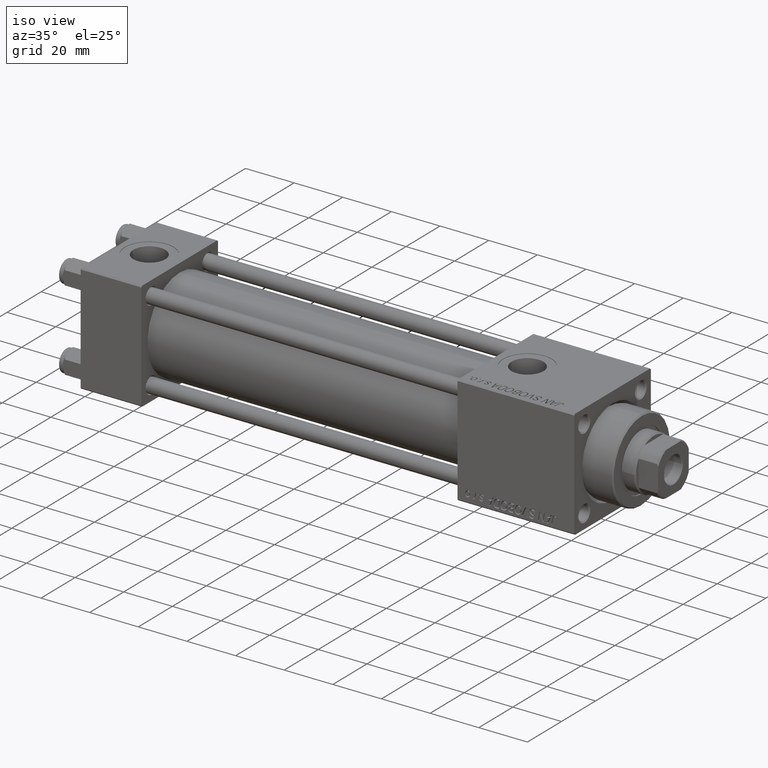
[diagram: clean part render]
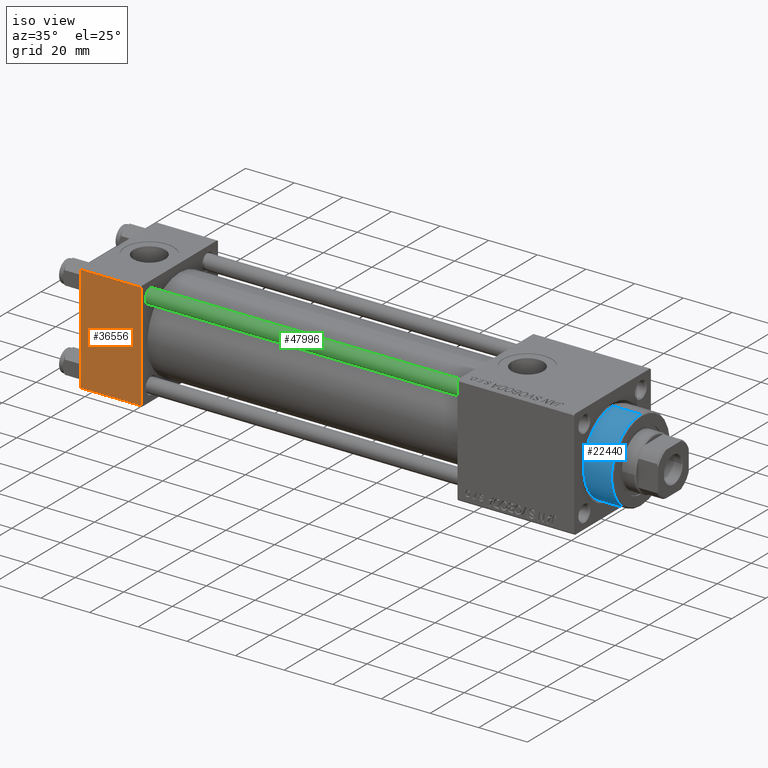
[diagram: same view with three faces highlighted in distinct colors, each labeled with its STEP entity id]
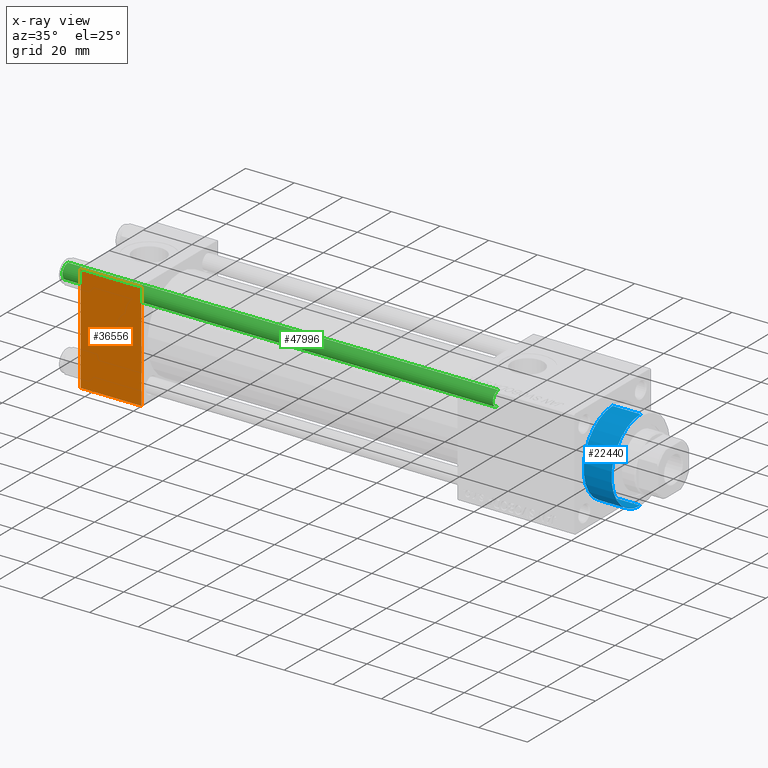
[diagram: x-ray of the same camera — body ghosted, the three highlighted faces saturated]
A machine part, iso view with three faces highlighted in distinct colors.
The next image is the same camera in x-ray (body ghosted, the three faces saturated) — at least one of them is partly hidden behind the body in this view.
Their STEP definitions:

[orange] entity #36556 — the highlighted planar face has unit normal (0, 1, 0).
#212 = EDGE_CURVE ( 'NONE', #17568, #12446, #4632, .T. ) ;
#1429 = DIRECTION ( 'NONE',  ( -1.000000000000000000, 0.000000000000000000, 0.000000000000000000 ) ) ;
#3080 = DIRECTION ( 'NONE',  ( -0.000000000000000000, 1.000000000000000000, 0.000000000000000000 ) ) ;
#4632 = LINE ( 'NONE', #48235, #14926 ) ;
#6069 = CARTESIAN_POINT ( 'NONE',  ( 25.00000000000000000, -22.50000000000000000, 22.00000000000000000 ) ) ;
#10345 = CARTESIAN_POINT ( 'NONE',  ( 25.00000000000000000, -22.50000000000000000, 22.50000000000000000 ) ) ;
#11223 = CARTESIAN_POINT ( 'NONE',  ( 25.00000000000000000, -22.50000000000000000, -21.99999999999997158 ) ) ;
#12446 = VERTEX_POINT ( 'NONE', #22373 ) ;
#14844 = EDGE_CURVE ( 'NONE', #22030, #17568, #18257, .T. ) ;
#14926 = VECTOR ( 'NONE', #24600, 1000.000000000000000 ) ;
#16319 = ORIENTED_EDGE ( 'NONE', *, *, #212, .T. ) ;
#16860 = EDGE_CURVE ( 'NONE', #22030, #20345, #45090, .T. ) ;
#16967 = VECTOR ( 'NONE', #1429, 1000.000000000000000 ) ;
#17066 = CARTESIAN_POINT ( 'NONE',  ( 25.00000000000000000, -22.50000000000000000, 22.50000000000000000 ) ) ;
#17568 = VERTEX_POINT ( 'NONE', #22093 ) ;
#17636 = ORIENTED_EDGE ( 'NONE', *, *, #14844, .T. ) ;
#18257 = LINE ( 'NONE', #6069, #16967 ) ;
#18638 = VECTOR ( 'NONE', #41439, 1000.000000000000000 ) ;
#20345 = VERTEX_POINT ( 'NONE', #11223 ) ;
#22030 = VERTEX_POINT ( 'NONE', #48374 ) ;
#22093 = CARTESIAN_POINT ( 'NONE',  ( 0.000000000000000000, -22.50000000000000000, 22.00000000000000000 ) ) ;
#22256 = EDGE_CURVE ( 'NONE', #12446, #20345, #26773, .T. ) ;
#22373 = CARTESIAN_POINT ( 'NONE',  ( 0.000000000000000000, -22.50000000000000000, -21.99999999999997158 ) ) ;
#23330 = ORIENTED_EDGE ( 'NONE', *, *, #22256, .T. ) ;
#24600 = DIRECTION ( 'NONE',  ( 0.000000000000000000, 0.000000000000000000, -1.000000000000000000 ) ) ;
#25326 = VECTOR ( 'NONE', #42607, 1000.000000000000000 ) ;
#25771 = EDGE_LOOP ( 'NONE', ( #16319, #23330, #51260, #17636 ) ) ;
#26773 = LINE ( 'NONE', #50656, #25326 ) ;
#29588 = PLANE ( 'NONE',  #31557 ) ;
#31557 = AXIS2_PLACEMENT_3D ( 'NONE', #10345, #3080, #38619 ) ;
#36556 = ADVANCED_FACE ( 'NONE', ( #41506 ), #29588, .F. ) ;
#38619 = DIRECTION ( 'NONE',  ( 0.000000000000000000, -0.000000000000000000, 1.000000000000000000 ) ) ;
#41439 = DIRECTION ( 'NONE',  ( 0.000000000000000000, 0.000000000000000000, -1.000000000000000000 ) ) ;
#41506 = FACE_OUTER_BOUND ( 'NONE', #25771, .T. ) ;
#42607 = DIRECTION ( 'NONE',  ( 1.000000000000000000, 0.000000000000000000, 0.000000000000000000 ) ) ;
#45090 = LINE ( 'NONE', #17066, #18638 ) ;
#48235 = CARTESIAN_POINT ( 'NONE',  ( 0.000000000000000000, -22.50000000000000000, 22.50000000000000000 ) ) ;
#48374 = CARTESIAN_POINT ( 'NONE',  ( 25.00000000000000000, -22.50000000000000000, 22.00000000000000000 ) ) ;
#50656 = CARTESIAN_POINT ( 'NONE',  ( 25.00000000000000000, -22.50000000000000000, -21.99999999999998579 ) ) ;
#51260 = ORIENTED_EDGE ( 'NONE', *, *, #16860, .F. ) ;

[blue] entity #22440 — the highlighted cylindrical surface (partial cylindrical patch) has radius 17 mm, axis along (-1, -0, -0).
#57 = DIRECTION ( 'NONE',  ( 1.000000000000000000, 0.000000000000000000, 0.000000000000000000 ) ) ;
#2995 = CARTESIAN_POINT ( 'NONE',  ( 17.00000000000000000, 2.081899558550500280E-15, 28.69999999999999929 ) ) ;
#3274 = VERTEX_POINT ( 'NONE', #3512 ) ;
#3512 = CARTESIAN_POINT ( 'NONE',  ( -17.00000000000000000, 0.000000000000000000, 40.19999999999999574 ) ) ;
#5221 = CYLINDRICAL_SURFACE ( 'NONE', #26984, 17.00000000000000000 ) ;
#5727 = ORIENTED_EDGE ( 'NONE', *, *, #29880, .F. ) ;
#7843 = CARTESIAN_POINT ( 'NONE',  ( 0.000000000000000000, 0.000000000000000000, 40.19999999999999574 ) ) ;
#8106 = DIRECTION ( 'NONE',  ( 0.000000000000000000, 0.000000000000000000, -1.000000000000000000 ) ) ;
#10120 = CARTESIAN_POINT ( 'NONE',  ( 0.000000000000000000, 0.000000000000000000, 40.70000000000000284 ) ) ;
#13037 = AXIS2_PLACEMENT_3D ( 'NONE', #7843, #8106, #57 ) ;
#13656 = EDGE_CURVE ( 'NONE', #3274, #34961, #18776, .T. ) ;
#14629 = CARTESIAN_POINT ( 'NONE',  ( -17.00000000000000000, 0.000000000000000000, 40.70000000000000284 ) ) ;
#16487 = EDGE_LOOP ( 'NONE', ( #5727, #42556, #39250, #44478 ) ) ;
#17917 = DIRECTION ( 'NONE',  ( -0.000000000000000000, -0.000000000000000000, -1.000000000000000000 ) ) ;
#18776 = LINE ( 'NONE', #14629, #25182 ) ;
#22440 = ADVANCED_FACE ( 'NONE', ( #41782 ), #5221, .T. ) ;
#22909 = DIRECTION ( 'NONE',  ( -0.000000000000000000, -0.000000000000000000, -1.000000000000000000 ) ) ;
#23271 = CIRCLE ( 'NONE', #35727, 17.00000000000000000 ) ;
#23801 = VERTEX_POINT ( 'NONE', #46132 ) ;
#24242 = LINE ( 'NONE', #40608, #33823 ) ;
#25021 = DIRECTION ( 'NONE',  ( -0.000000000000000000, -0.000000000000000000, -1.000000000000000000 ) ) ;
#25182 = VECTOR ( 'NONE', #22909, 1000.000000000000000 ) ;
#25350 = EDGE_CURVE ( 'NONE', #23801, #3274, #27097, .T. ) ;
#25455 = DIRECTION ( 'NONE',  ( -1.000000000000000000, 0.000000000000000000, 0.000000000000000000 ) ) ;
#26984 = AXIS2_PLACEMENT_3D ( 'NONE', #10120, #17917, #25455 ) ;
#27097 = CIRCLE ( 'NONE', #13037, 17.00000000000000000 ) ;
#29880 = EDGE_CURVE ( 'NONE', #23801, #42574, #24242, .T. ) ;
#30189 = DIRECTION ( 'NONE',  ( 1.000000000000000000, 0.000000000000000000, 0.000000000000000000 ) ) ;
#33823 = VECTOR ( 'NONE', #25021, 1000.000000000000000 ) ;
#34961 = VERTEX_POINT ( 'NONE', #51078 ) ;
#35727 = AXIS2_PLACEMENT_3D ( 'NONE', #41617, #45265, #30189 ) ;
#39250 = ORIENTED_EDGE ( 'NONE', *, *, #13656, .T. ) ;
#40608 = CARTESIAN_POINT ( 'NONE',  ( 17.00000000000000000, 2.081899558550500280E-15, 40.70000000000000284 ) ) ;
#40927 = EDGE_CURVE ( 'NONE', #34961, #42574, #23271, .T. ) ;
#41617 = CARTESIAN_POINT ( 'NONE',  ( 0.000000000000000000, 0.000000000000000000, 28.69999999999999929 ) ) ;
#41782 = FACE_OUTER_BOUND ( 'NONE', #16487, .T. ) ;
#42556 = ORIENTED_EDGE ( 'NONE', *, *, #25350, .T. ) ;
#42574 = VERTEX_POINT ( 'NONE', #2995 ) ;
#44478 = ORIENTED_EDGE ( 'NONE', *, *, #40927, .T. ) ;
#45265 = DIRECTION ( 'NONE',  ( 0.000000000000000000, 0.000000000000000000, 1.000000000000000000 ) ) ;
#46132 = CARTESIAN_POINT ( 'NONE',  ( 17.00000000000000000, 2.081899558550500280E-15, 40.19999999999999574 ) ) ;
#51078 = CARTESIAN_POINT ( 'NONE',  ( -17.00000000000000000, 0.000000000000000000, 28.69999999999999929 ) ) ;

[green] entity #47996 — the highlighted cylindrical surface (edge-blend (fillet) strip) has radius 3 mm, axis along (1, 0, -0).
#1314 = EDGE_CURVE ( 'NONE', #17821, #8211, #24050, .T. ) ;
#3479 = CYLINDRICAL_SURFACE ( 'NONE', #49284, 3.000000000000000444 ) ;
#6969 = VERTEX_POINT ( 'NONE', #19729 ) ;
#7112 = DIRECTION ( 'NONE',  ( -1.000000000000000000, 0.000000000000000000, 0.000000000000000000 ) ) ;
#7325 = ORIENTED_EDGE ( 'NONE', *, *, #1314, .T. ) ;
#7505 = AXIS2_PLACEMENT_3D ( 'NONE', #23891, #38958, #31698 ) ;
#8135 = DIRECTION ( 'NONE',  ( -0.000000000000000000, -0.000000000000000000, -1.000000000000000000 ) ) ;
#8211 = VERTEX_POINT ( 'NONE', #23041 ) ;
#8713 = VERTEX_POINT ( 'NONE', #41636 ) ;
#12073 = VECTOR ( 'NONE', #24553, 1000.000000000000000 ) ;
#14805 = EDGE_LOOP ( 'NONE', ( #34088, #15264, #7325, #29474 ) ) ;
#15264 = ORIENTED_EDGE ( 'NONE', *, *, #50277, .T. ) ;
#17792 = EDGE_CURVE ( 'NONE', #6969, #8713, #26935, .T. ) ;
#17821 = VERTEX_POINT ( 'NONE', #31934 ) ;
#19729 = CARTESIAN_POINT ( 'NONE',  ( -3.000000000000000444, 0.000000000000000000, 177.5000000000000000 ) ) ;
#21730 = DIRECTION ( 'NONE',  ( -0.000000000000000000, -0.000000000000000000, -1.000000000000000000 ) ) ;
#22785 = EDGE_CURVE ( 'NONE', #6969, #8211, #44604, .T. ) ;
#23041 = CARTESIAN_POINT ( 'NONE',  ( -3.000000000000000444, 0.000000000000000000, 0.5000000000000281997 ) ) ;
#23102 = DIRECTION ( 'NONE',  ( 1.000000000000000000, 0.000000000000000000, 0.000000000000000000 ) ) ;
#23699 = FACE_OUTER_BOUND ( 'NONE', #14805, .T. ) ;
#23891 = CARTESIAN_POINT ( 'NONE',  ( 0.000000000000000000, 0.000000000000000000, 0.5000000000000281997 ) ) ;
#23944 = CARTESIAN_POINT ( 'NONE',  ( 0.000000000000000000, 0.000000000000000000, 178.0000000000000000 ) ) ;
#24050 = CIRCLE ( 'NONE', #7505, 3.000000000000000444 ) ;
#24553 = DIRECTION ( 'NONE',  ( -0.000000000000000000, -0.000000000000000000, -1.000000000000000000 ) ) ;
#26752 = DIRECTION ( 'NONE',  ( 0.000000000000000000, 0.000000000000000000, -1.000000000000000000 ) ) ;
#26935 = CIRCLE ( 'NONE', #35230, 3.000000000000000444 ) ;
#29474 = ORIENTED_EDGE ( 'NONE', *, *, #22785, .F. ) ;
#31417 = CARTESIAN_POINT ( 'NONE',  ( 0.000000000000000000, 0.000000000000000000, 177.5000000000000000 ) ) ;
#31698 = DIRECTION ( 'NONE',  ( 1.000000000000000000, 0.000000000000000000, 0.000000000000000000 ) ) ;
#31934 = CARTESIAN_POINT ( 'NONE',  ( 3.000000000000000444, 3.673940397442060361E-16, 0.5000000000000281997 ) ) ;
#34088 = ORIENTED_EDGE ( 'NONE', *, *, #17792, .T. ) ;
#35230 = AXIS2_PLACEMENT_3D ( 'NONE', #31417, #26752, #23102 ) ;
#38958 = DIRECTION ( 'NONE',  ( -0.000000000000000000, -0.000000000000000000, 1.000000000000000000 ) ) ;
#40653 = CARTESIAN_POINT ( 'NONE',  ( 3.000000000000000444, 3.673940397442060361E-16, 178.0000000000000000 ) ) ;
#41117 = VECTOR ( 'NONE', #21730, 1000.000000000000000 ) ;
#41636 = CARTESIAN_POINT ( 'NONE',  ( 3.000000000000000444, 3.673940397442060361E-16, 177.5000000000000000 ) ) ;
#44288 = LINE ( 'NONE', #40653, #12073 ) ;
#44604 = LINE ( 'NONE', #49272, #41117 ) ;
#47996 = ADVANCED_FACE ( 'NONE', ( #23699 ), #3479, .T. ) ;
#49272 = CARTESIAN_POINT ( 'NONE',  ( -3.000000000000000444, 0.000000000000000000, 178.0000000000000000 ) ) ;
#49284 = AXIS2_PLACEMENT_3D ( 'NONE', #23944, #8135, #7112 ) ;
#50277 = EDGE_CURVE ( 'NONE', #8713, #17821, #44288, .T. ) ;